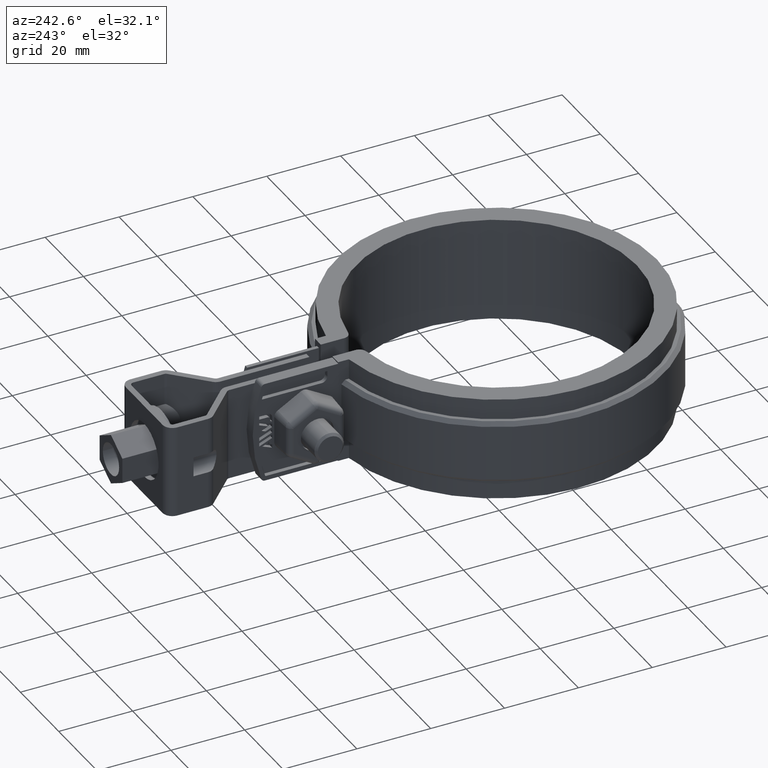
[diagram: clean part render]
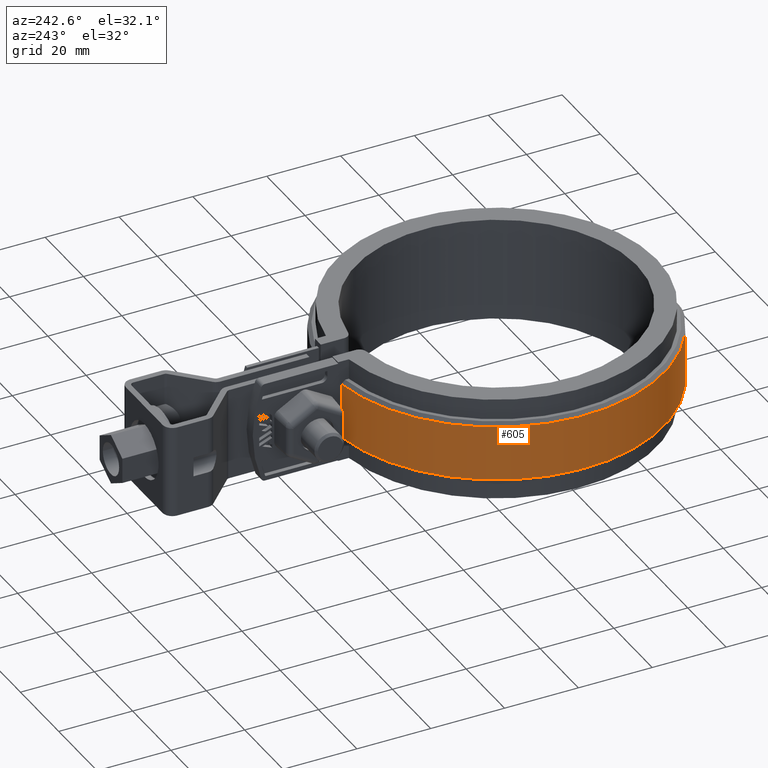
[diagram: same view with one face highlighted and labeled with its STEP entity id]
A machine part, auxiliary view. The second image highlights one B-rep face of the part: STEP entity #605.
In plain terms, the highlighted cylindrical surface (partial cylindrical patch) has radius 45.5 mm, axis along (0, 0, -1).
Its self-contained STEP definition (entity closure, byte-faithful):
#605 = ADVANCED_FACE( '', ( #1121 ), #1122, .T. );
#1121 = FACE_OUTER_BOUND( '', #2429, .T. );
#1122 = CYLINDRICAL_SURFACE( '', #2430, 45.5000000000000 );
#2429 = EDGE_LOOP( '', ( #5510, #5511, #5512, #5513 ) );
#2430 = AXIS2_PLACEMENT_3D( '', #5514, #5515, #5516 );
#5510 = ORIENTED_EDGE( '', *, *, #7703, .T. );
#5511 = ORIENTED_EDGE( '', *, *, #7527, .T. );
#5512 = ORIENTED_EDGE( '', *, *, #7690, .F. );
#5513 = ORIENTED_EDGE( '', *, *, #7705, .T. );
#5514 = CARTESIAN_POINT( '', ( -1.73472347597681E-015, 6.93889390390723E-015, 8.50000000000000 ) );
#5515 = DIRECTION( '', ( 0.000000000000000, 0.000000000000000, -1.00000000000000 ) );
#5516 = DIRECTION( '', ( 0.109890109890110, -0.993943742748220, 0.000000000000000 ) );
#7527 = EDGE_CURVE( '', #8714, #8532, #8716, .T. );
#7690 = EDGE_CURVE( '', #8976, #8532, #8977, .T. );
#7703 = EDGE_CURVE( '', #8993, #8714, #8994, .F. );
#7705 = EDGE_CURVE( '', #8976, #8993, #8996, .T. );
#8532 = VERTEX_POINT( '', #11593 );
#8714 = VERTEX_POINT( '', #12119 );
#8716 = CIRCLE( '', #12124, 45.5000000000000 );
#8976 = VERTEX_POINT( '', #12808 );
#8977 = LINE( '', #12809, #12810 );
#8993 = VERTEX_POINT( '', #12832 );
#8994 = LINE( '', #12833, #12834 );
#8996 = CIRCLE( '', #12839, 45.5000000000000 );
#11593 = CARTESIAN_POINT( '', ( -16.2051315524462, -42.5163934426229, -7.49999999999995 ) );
#12119 = CARTESIAN_POINT( '', ( -6.00000000000000, 45.1026606753970, -7.50000000000000 ) );
#12124 = AXIS2_PLACEMENT_3D( '', #14533, #14534, #14535 );
#12808 = CARTESIAN_POINT( '', ( -16.2051315524462, -42.5163934426229, 7.49999999999995 ) );
#12809 = CARTESIAN_POINT( '', ( -16.2051315524462, -42.5163934426230, 8.50000000000000 ) );
#12810 = VECTOR( '', #14719, 1000.00000000000 );
#12832 = CARTESIAN_POINT( '', ( -6.00000000000000, 45.1026606753970, 7.49999999999999 ) );
#12833 = CARTESIAN_POINT( '', ( -6.00000000000000, 45.1026606753970, 8.50000000000000 ) );
#12834 = VECTOR( '', #14744, 1000.00000000000 );
#12839 = AXIS2_PLACEMENT_3D( '', #14745, #14746, #14747 );
#14533 = CARTESIAN_POINT( '', ( -1.73472347597681E-015, 6.93889390390723E-015, -7.50000000000000 ) );
#14534 = DIRECTION( '', ( 0.000000000000000, 0.000000000000000, 1.00000000000000 ) );
#14535 = DIRECTION( '', ( 1.00000000000000, 0.000000000000000, 0.000000000000000 ) );
#14719 = DIRECTION( '', ( 0.000000000000000, 0.000000000000000, -1.00000000000000 ) );
#14744 = DIRECTION( '', ( 0.000000000000000, 0.000000000000000, 1.00000000000000 ) );
#14745 = CARTESIAN_POINT( '', ( -1.73472347597681E-015, 6.93889390390723E-015, 7.49999999999999 ) );
#14746 = DIRECTION( '', ( 0.000000000000000, 0.000000000000000, -1.00000000000000 ) );
#14747 = DIRECTION( '', ( -1.00000000000000, 0.000000000000000, 0.000000000000000 ) );